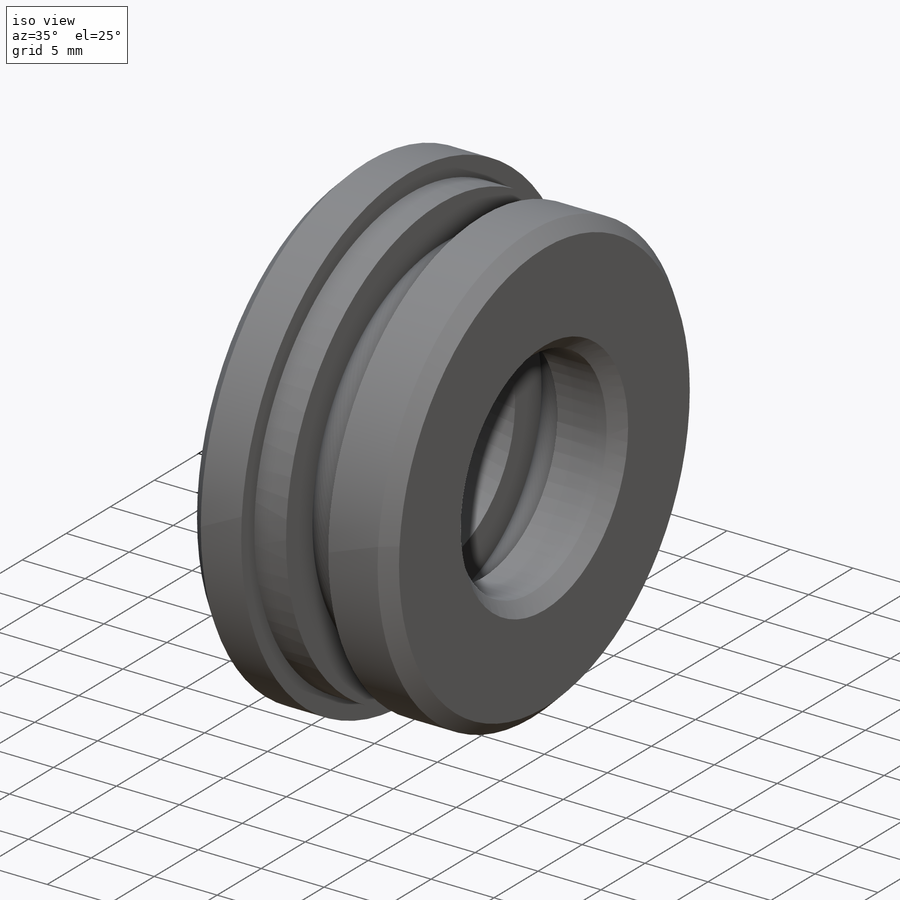
[diagram: iso view]
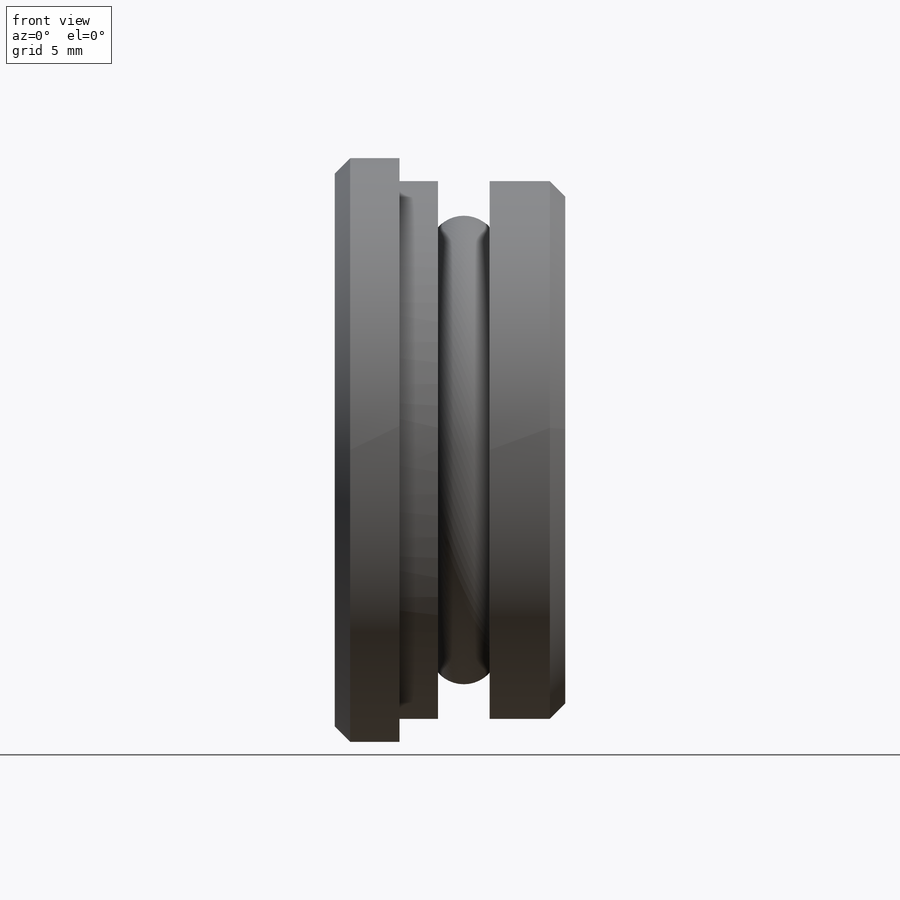
[diagram: front view]
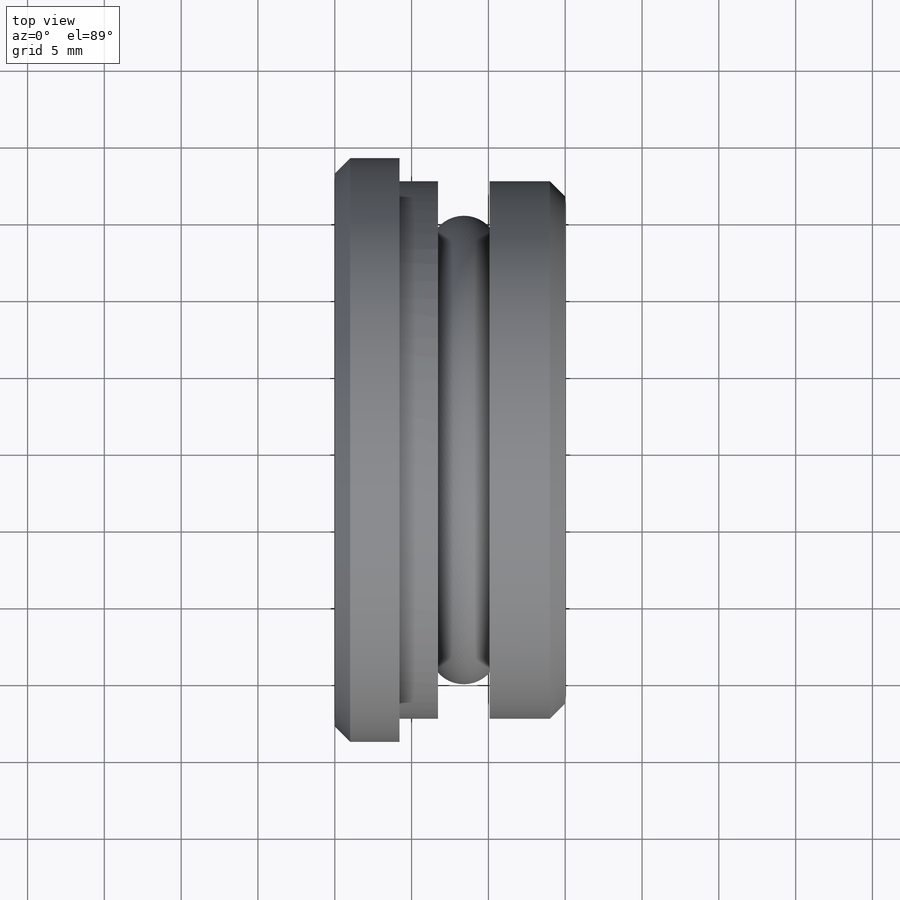
[diagram: top view]
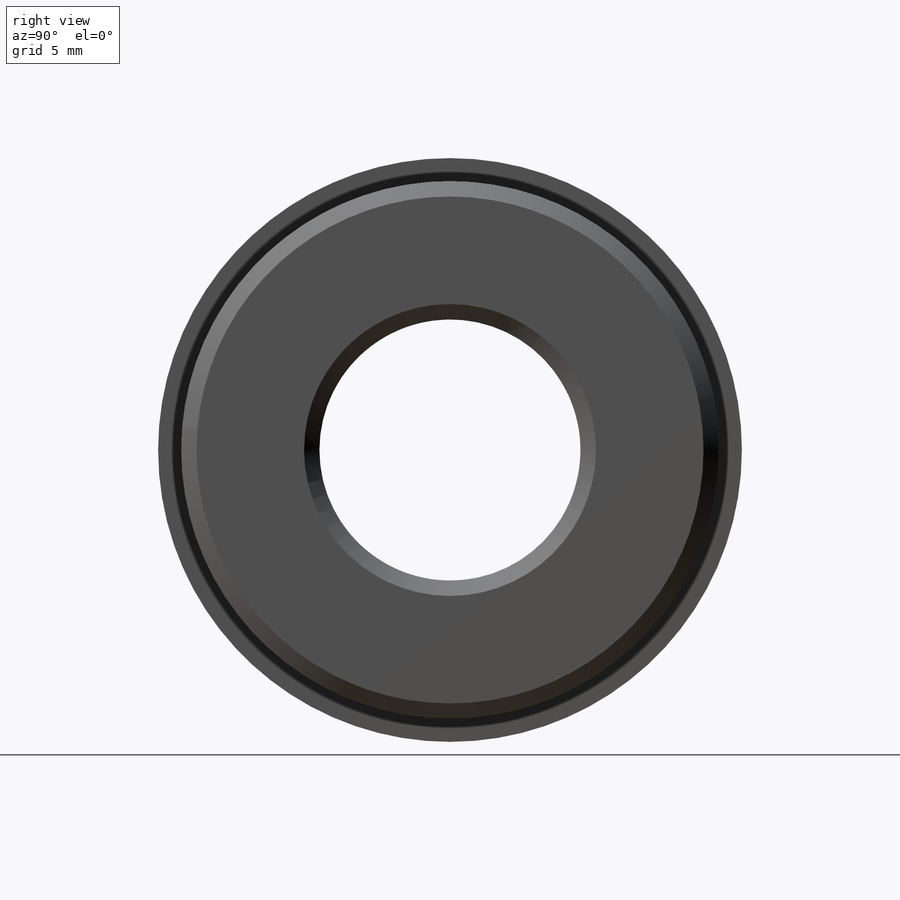
[diagram: right view]
SOLIDWORKS PART (.sldprt)
format: sldprt  version: not decoded by parser v0  size: 321,024 bytes
history: native  units: mm
features: sketch x5, revolve x4, plane x3, material x1 + 4 further entries (+8 scaffold rows collapsed)
feature tree (25):
  scaffold x8  (default folders/planes/origin — collapsed)
  material  " 40Х ГОСТ 4543-71"
  plane  "Спереди"
  plane  "Сверху"
  plane  "Слева"
  "Начало координат"
  "PTricksFreeParameters"
  "PTricksEqu"
  "PTricksFreeParameters"
  sketch  "Эскиз1"  dims[c1.D1=~7.470609mm c2.D1=~27.937143deg]
  sketch  "Эскиз3"
  revolve  "Повернуть1"  Angle=360deg
  sketch  "Эскиз5"
  sketch  "Эскиз6"  dims[D1=13.0mm]
  sketch  "Эскиз7"
  revolve  "Повернуть2"  Angle=360deg
  revolve  "Повернуть3"  Angle=360deg
  revolve  "Повернуть4"  Angle=360deg
decode coverage: 6 of 9 modeling features carry decoded parameters; 4 rows unclassified (native names shown)
note: ~ marks probable driven/reference dimensions
note: suppression state not decoded; provenance and decode notes live in map.json
